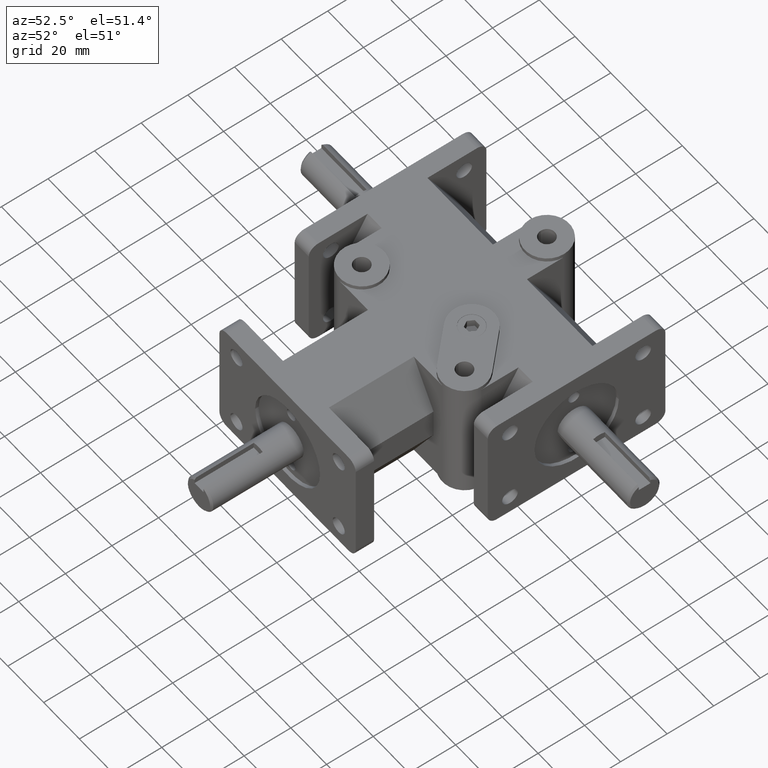
[diagram: clean part render]
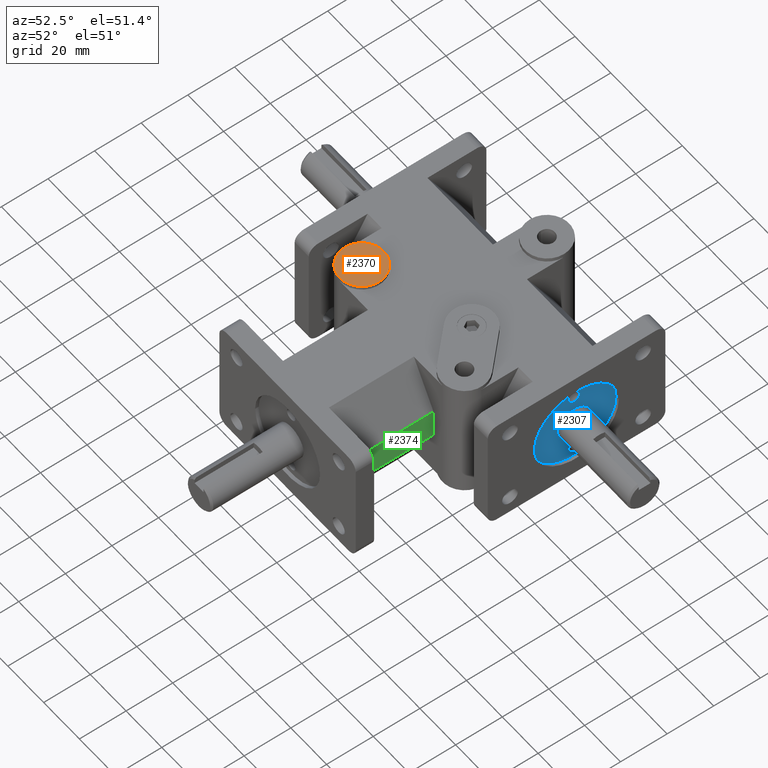
[diagram: same view with three faces highlighted in distinct colors, each labeled with its STEP entity id]
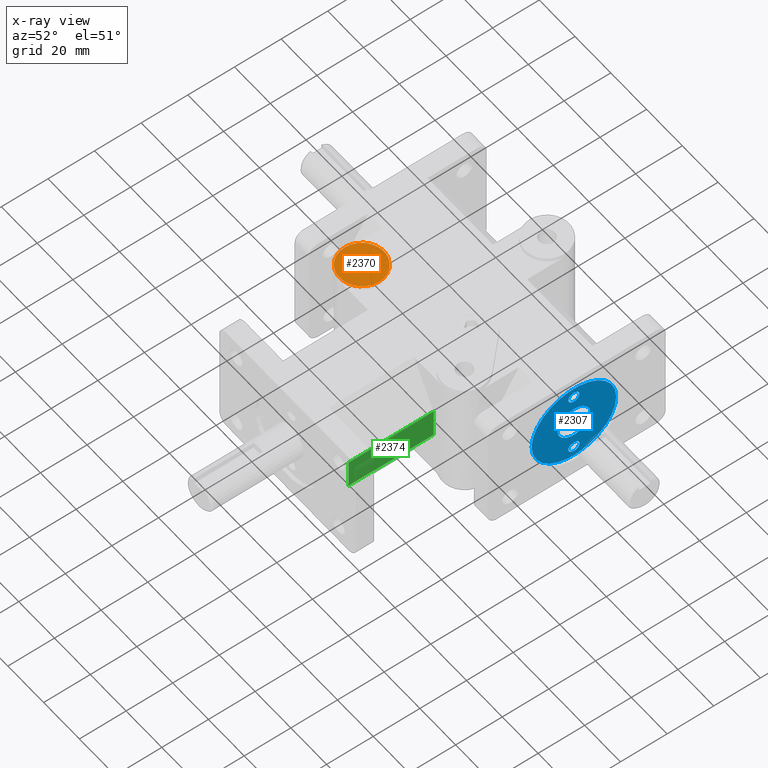
[diagram: x-ray of the same camera — body ghosted, the three highlighted faces saturated]
A machine part, auxiliary view with three faces highlighted in distinct colors.
The next image is the same camera in x-ray (body ghosted, the three faces saturated) — at least one of them is partly hidden behind the body in this view.
Their STEP definitions:

[orange] entity #2370 — the highlighted planar face has unit normal (0, 0, 1).
#41=FACE_BOUND('',#407,.T.);
#124=PLANE('',#2615);
#251=FACE_OUTER_BOUND('',#406,.T.);
#406=EDGE_LOOP('',(#2067));
#407=EDGE_LOOP('',(#2068));
#990=CIRCLE('',#2599,3.3655);
#998=CIRCLE('',#2616,9.525);
#1209=VERTEX_POINT('',#3942);
#1219=VERTEX_POINT('',#3981);
#1512=EDGE_CURVE('',#1209,#1209,#990,.T.);
#1531=EDGE_CURVE('',#1219,#1219,#998,.T.);
#2067=ORIENTED_EDGE('',*,*,#1531,.F.);
#2068=ORIENTED_EDGE('',*,*,#1512,.T.);
#2370=ADVANCED_FACE('',(#251,#41),#124,.T.);
#2599=AXIS2_PLACEMENT_3D('',#3944,#3212,#3213);
#2615=AXIS2_PLACEMENT_3D('',#3980,#3255,#3256);
#2616=AXIS2_PLACEMENT_3D('',#3982,#3257,#3258);
#3212=DIRECTION('center_axis',(0.,0.,-1.));
#3213=DIRECTION('ref_axis',(1.,0.,0.));
#3255=DIRECTION('center_axis',(0.,0.,1.));
#3256=DIRECTION('ref_axis',(-1.,0.,0.));
#3257=DIRECTION('center_axis',(0.,0.,-1.));
#3258=DIRECTION('ref_axis',(1.,0.,0.));
#3942=CARTESIAN_POINT('',(-32.0675,53.848,27.051));
#3944=CARTESIAN_POINT('Origin',(-28.702,53.848,27.051));
#3980=CARTESIAN_POINT('Origin',(-27.8360909090909,53.848,27.051));
#3981=CARTESIAN_POINT('',(-38.227,53.848,27.051));
#3982=CARTESIAN_POINT('Origin',(-28.702,53.848,27.051));

[blue] entity #2307 — the highlighted planar face has unit normal (1, 0, 0).
#21=FACE_BOUND('',#324,.T.);
#22=FACE_BOUND('',#325,.T.);
#23=FACE_BOUND('',#326,.T.);
#92=PLANE('',#2483);
#188=FACE_OUTER_BOUND('',#323,.T.);
#323=EDGE_LOOP('',(#1712));
#324=EDGE_LOOP('',(#1713));
#325=EDGE_LOOP('',(#1714));
#326=EDGE_LOOP('',(#1715));
#896=CIRCLE('',#2413,2.3749);
#898=CIRCLE('',#2417,2.3749);
#911=CIRCLE('',#2441,18.1356);
#916=CIRCLE('',#2452,7.);
#1002=VERTEX_POINT('',#3343);
#1004=VERTEX_POINT('',#3350);
#1017=VERTEX_POINT('',#3393);
#1031=VERTEX_POINT('',#3436);
#1223=EDGE_CURVE('',#1002,#1002,#896,.T.);
#1226=EDGE_CURVE('',#1004,#1004,#898,.T.);
#1246=EDGE_CURVE('',#1017,#1017,#911,.T.);
#1265=EDGE_CURVE('',#1031,#1031,#916,.T.);
#1712=ORIENTED_EDGE('',*,*,#1246,.T.);
#1713=ORIENTED_EDGE('',*,*,#1265,.T.);
#1714=ORIENTED_EDGE('',*,*,#1223,.T.);
#1715=ORIENTED_EDGE('',*,*,#1226,.T.);
#2307=ADVANCED_FACE('',(#188,#21,#22,#23),#92,.T.);
#2413=AXIS2_PLACEMENT_3D('',#3344,#2651,#2652);
#2417=AXIS2_PLACEMENT_3D('',#3351,#2660,#2661);
#2441=AXIS2_PLACEMENT_3D('',#3395,#2715,#2716);
#2452=AXIS2_PLACEMENT_3D('',#3438,#2749,#2750);
#2483=AXIS2_PLACEMENT_3D('',#3527,#2833,#2834);
#2651=DIRECTION('center_axis',(-1.,0.,0.));
#2652=DIRECTION('ref_axis',(0.,1.,0.));
#2660=DIRECTION('center_axis',(-1.,0.,0.));
#2661=DIRECTION('ref_axis',(0.,1.,0.));
#2715=DIRECTION('center_axis',(1.,0.,0.));
#2716=DIRECTION('ref_axis',(0.,-1.,0.));
#2749=DIRECTION('center_axis',(-1.,0.,0.));
#2750=DIRECTION('ref_axis',(0.,1.,0.));
#2833=DIRECTION('center_axis',(1.,0.,0.));
#2834=DIRECTION('ref_axis',(0.,-1.,0.));
#3343=CARTESIAN_POINT('',(52.451,80.1751,-13.462));
#3344=CARTESIAN_POINT('Origin',(52.451,82.55,-13.462));
#3350=CARTESIAN_POINT('',(52.451,80.1751,13.462));
#3351=CARTESIAN_POINT('Origin',(52.451,82.55,13.462));
#3393=CARTESIAN_POINT('',(52.451,100.6856,-2.22097044906167E-15));
#3395=CARTESIAN_POINT('Origin',(52.451,82.55,0.));
#3436=CARTESIAN_POINT('',(52.451,75.55,-8.57252759403147E-16));
#3438=CARTESIAN_POINT('Origin',(52.451,82.55,0.));
#3527=CARTESIAN_POINT('Origin',(52.451,83.9239090909091,-2.08319265799052E-16));

[green] entity #2374 — the highlighted planar face has unit normal (1, 0, 0).
#128=PLANE('',#2623);
#255=FACE_OUTER_BOUND('',#414,.T.);
#414=EDGE_LOOP('',(#2075,#2076,#2077,#2078));
#526=LINE('',#3657,#748);
#637=LINE('',#3934,#859);
#639=LINE('',#3938,#861);
#652=LINE('',#3993,#874);
#748=VECTOR('',#2947,1.);
#859=VECTOR('',#3202,1.);
#861=VECTOR('',#3206,1.);
#874=VECTOR('',#3273,1.);
#1111=VERTEX_POINT('',#3654);
#1112=VERTEX_POINT('',#3656);
#1206=VERTEX_POINT('',#3932);
#1207=VERTEX_POINT('',#3936);
#1362=EDGE_CURVE('',#1112,#1111,#526,.T.);
#1507=EDGE_CURVE('',#1206,#1111,#637,.T.);
#1509=EDGE_CURVE('',#1112,#1207,#639,.T.);
#1535=EDGE_CURVE('',#1207,#1206,#652,.T.);
#2075=ORIENTED_EDGE('',*,*,#1507,.F.);
#2076=ORIENTED_EDGE('',*,*,#1535,.F.);
#2077=ORIENTED_EDGE('',*,*,#1509,.F.);
#2078=ORIENTED_EDGE('',*,*,#1362,.T.);
#2374=ADVANCED_FACE('',(#255),#128,.T.);
#2623=AXIS2_PLACEMENT_3D('',#3992,#3271,#3272);
#2947=DIRECTION('',(0.,0.,-1.));
#3202=DIRECTION('',(0.,-1.,0.));
#3206=DIRECTION('',(0.,1.,0.));
#3271=DIRECTION('center_axis',(1.,0.,0.));
#3272=DIRECTION('ref_axis',(0.,-1.,0.));
#3273=DIRECTION('',(0.,0.,-1.));
#3654=CARTESIAN_POINT('',(23.8125,7.874,-6.35));
#3656=CARTESIAN_POINT('',(23.8125,7.874,6.35));
#3657=CARTESIAN_POINT('',(23.8125,7.874,0.));
#3932=CARTESIAN_POINT('',(23.8125,44.323,-6.35));
#3934=CARTESIAN_POINT('',(23.8125,34.7653328121895,-6.35));
#3936=CARTESIAN_POINT('',(23.8125,44.323,6.35));
#3938=CARTESIAN_POINT('',(23.8125,34.7653328121895,6.35));
#3992=CARTESIAN_POINT('Origin',(23.8125,7.874,0.));
#3993=CARTESIAN_POINT('',(23.8125,44.323,0.));